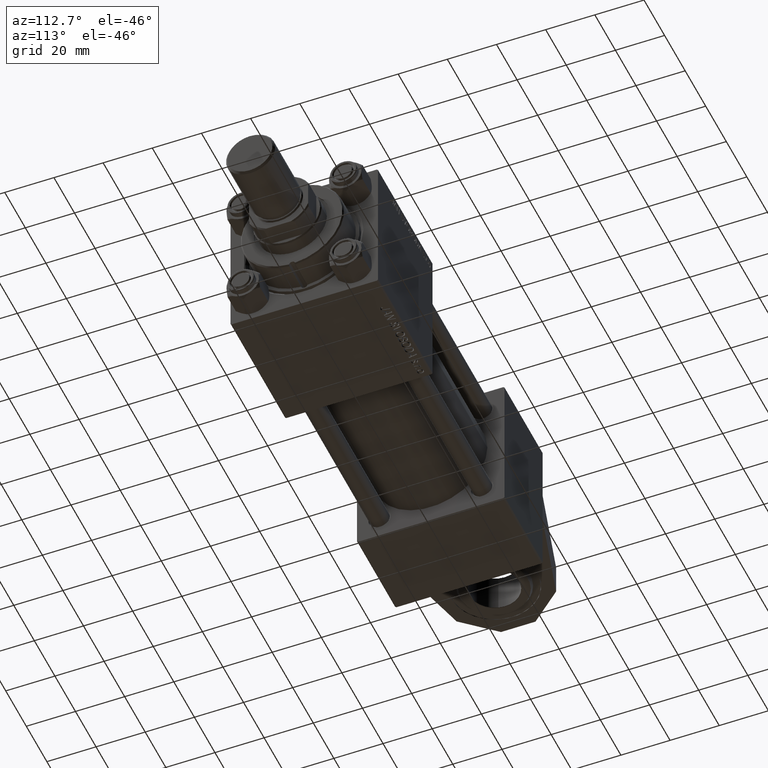
[diagram: clean part render]
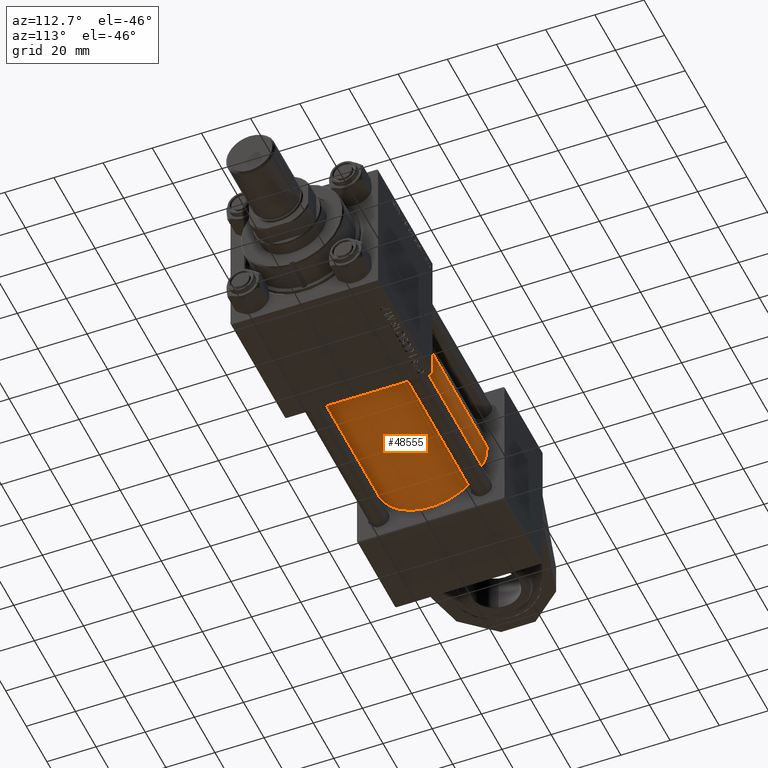
[diagram: same view with one face highlighted and labeled with its STEP entity id]
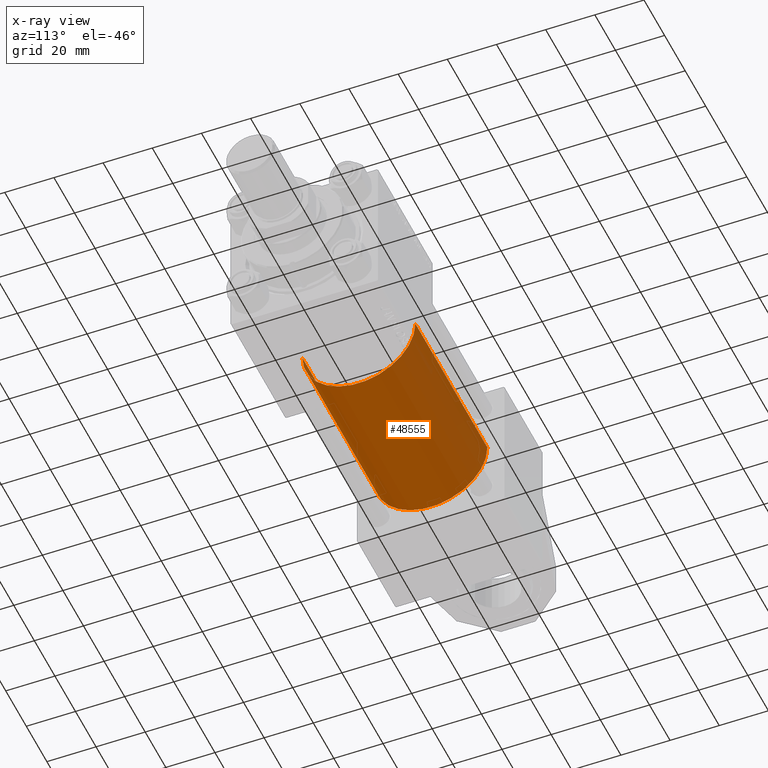
[diagram: x-ray of the same camera — body ghosted, the highlighted face saturated]
A machine part, auxiliary view. The second image highlights one B-rep face of the part: STEP entity #48555.
The next image is the same camera in x-ray: the body ghosted, the highlighted face saturated — about 1% of this face is hidden behind the body in this view.
In plain terms, the highlighted cylindrical surface (partial cylindrical patch) has radius 23 mm, axis along (-1, 0, -0).
Its self-contained STEP definition (entity closure, byte-faithful):
#683 = VERTEX_POINT ( 'NONE', #45809 ) ;
#6351 = DIRECTION ( 'NONE',  ( -1.000000000000000000, -0.000000000000000000, -0.000000000000000000 ) ) ;
#6886 = EDGE_CURVE ( 'NONE', #26181, #7179, #33718, .T. ) ;
#7179 = VERTEX_POINT ( 'NONE', #7789 ) ;
#7222 = DIRECTION ( 'NONE',  ( -1.000000000000000000, -0.000000000000000000, -0.000000000000000000 ) ) ;
#7723 = ORIENTED_EDGE ( 'NONE', *, *, #6886, .F. ) ;
#7789 = CARTESIAN_POINT ( 'NONE',  ( 107.0000000000000142, 2.146024240737016609E-16, -23.00000000000000000 ) ) ;
#7849 = DIRECTION ( 'NONE',  ( 0.000000000000000000, 0.000000000000000000, 1.000000000000000000 ) ) ;
#7872 = FACE_OUTER_BOUND ( 'NONE', #11175, .T. ) ;
#11175 = EDGE_LOOP ( 'NONE', ( #19571, #7723, #26492, #43678 ) ) ;
#11622 = AXIS2_PLACEMENT_3D ( 'NONE', #26653, #42828, #42575 ) ;
#15845 = CARTESIAN_POINT ( 'NONE',  ( 37.00000000000000711, 2.146024240737016609E-16, -23.00000000000000000 ) ) ;
#16051 = DIRECTION ( 'NONE',  ( 0.000000000000000000, 0.000000000000000000, 1.000000000000000000 ) ) ;
#18396 = CARTESIAN_POINT ( 'NONE',  ( 107.0000000000000142, -2.602085213965210642E-15, 23.00000000000000000 ) ) ;
#19571 = ORIENTED_EDGE ( 'NONE', *, *, #47870, .F. ) ;
#19925 = CIRCLE ( 'NONE', #37113, 23.00000000000000000 ) ;
#22369 = CARTESIAN_POINT ( 'NONE',  ( 107.0000000000000142, 2.146024240737016609E-16, -23.00000000000000000 ) ) ;
#23204 = EDGE_CURVE ( 'NONE', #26181, #683, #34068, .T. ) ;
#26181 = VERTEX_POINT ( 'NONE', #36946 ) ;
#26492 = ORIENTED_EDGE ( 'NONE', *, *, #23204, .T. ) ;
#26653 = CARTESIAN_POINT ( 'NONE',  ( 107.0000000000000142, -2.602085213965210642E-15, 0.000000000000000000 ) ) ;
#27866 = CYLINDRICAL_SURFACE ( 'NONE', #29713, 23.00000000000000000 ) ;
#29713 = AXIS2_PLACEMENT_3D ( 'NONE', #31223, #42791, #16051 ) ;
#31223 = CARTESIAN_POINT ( 'NONE',  ( 107.0000000000000142, -2.602085213965210642E-15, 0.000000000000000000 ) ) ;
#33718 = CIRCLE ( 'NONE', #11622, 23.00000000000000000 ) ;
#34068 = LINE ( 'NONE', #18396, #42349 ) ;
#36946 = CARTESIAN_POINT ( 'NONE',  ( 107.0000000000000142, -2.602085213965210642E-15, 23.00000000000000000 ) ) ;
#37113 = AXIS2_PLACEMENT_3D ( 'NONE', #46883, #43023, #7849 ) ;
#38550 = LINE ( 'NONE', #22369, #45371 ) ;
#42349 = VECTOR ( 'NONE', #6351, 1000.000000000000000 ) ;
#42575 = DIRECTION ( 'NONE',  ( 0.000000000000000000, 0.000000000000000000, -1.000000000000000000 ) ) ;
#42791 = DIRECTION ( 'NONE',  ( -1.000000000000000000, -0.000000000000000000, -0.000000000000000000 ) ) ;
#42828 = DIRECTION ( 'NONE',  ( 1.000000000000000000, 0.000000000000000000, 0.000000000000000000 ) ) ;
#43023 = DIRECTION ( 'NONE',  ( 1.000000000000000000, -0.000000000000000000, 0.000000000000000000 ) ) ;
#43678 = ORIENTED_EDGE ( 'NONE', *, *, #46343, .T. ) ;
#43992 = VERTEX_POINT ( 'NONE', #15845 ) ;
#45371 = VECTOR ( 'NONE', #7222, 1000.000000000000000 ) ;
#45809 = CARTESIAN_POINT ( 'NONE',  ( 37.00000000000000711, -2.602085213965210642E-15, 23.00000000000000000 ) ) ;
#46343 = EDGE_CURVE ( 'NONE', #683, #43992, #19925, .T. ) ;
#46883 = CARTESIAN_POINT ( 'NONE',  ( 37.00000000000000711, -2.602085213965210642E-15, 0.000000000000000000 ) ) ;
#47870 = EDGE_CURVE ( 'NONE', #7179, #43992, #38550, .T. ) ;
#48555 = ADVANCED_FACE ( 'NONE', ( #7872 ), #27866, .T. ) ;